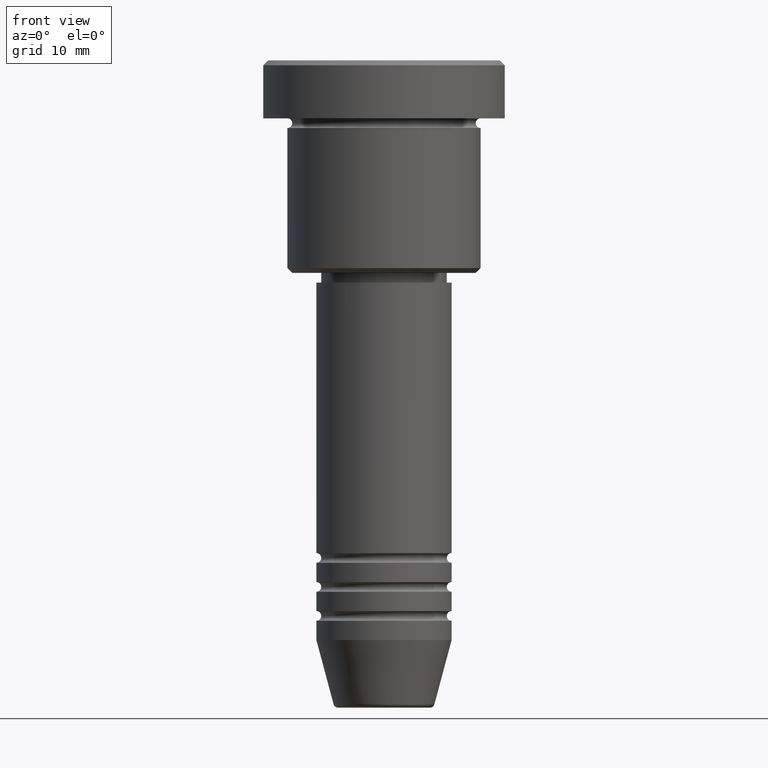
[diagram: clean part render]
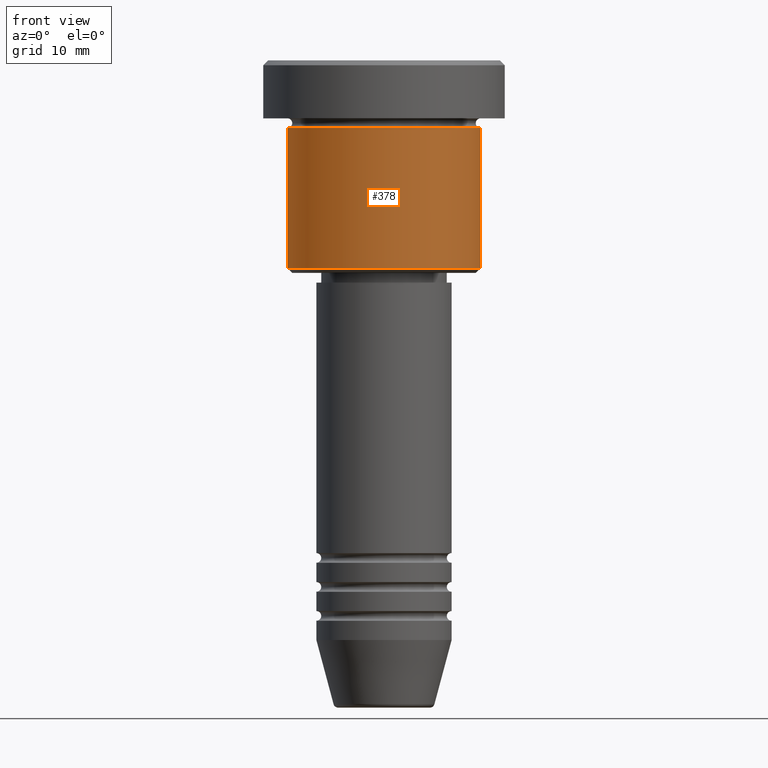
[diagram: same view with one face highlighted and labeled with its STEP entity id]
A machine part, front view. The second image highlights one B-rep face of the part: STEP entity #378.
In plain terms, the highlighted cylindrical surface (partial cylindrical patch) has radius 10 mm, axis along (-0, -0, 1).
Its self-contained STEP definition (entity closure, byte-faithful):
#51 = CIRCLE ( 'NONE', #797, 10.00000000000000000 ) ;
#53 = EDGE_CURVE ( 'NONE', #73, #863, #753, .T. ) ;
#73 = VERTEX_POINT ( 'NONE', #875 ) ;
#92 = DIRECTION ( 'NONE',  ( 1.000000000000000000, 0.000000000000000000, 0.000000000000000000 ) ) ;
#96 = DIRECTION ( 'NONE',  ( -0.000000000000000000, -0.000000000000000000, 1.000000000000000000 ) ) ;
#100 = LINE ( 'NONE', #652, #425 ) ;
#151 = ORIENTED_EDGE ( 'NONE', *, *, #53, .F. ) ;
#171 = CYLINDRICAL_SURFACE ( 'NONE', #406, 10.00000000000000000 ) ;
#222 = CARTESIAN_POINT ( 'NONE',  ( 0.000000000000000000, 0.000000000000000000, -6.999999999999996447 ) ) ;
#342 = EDGE_CURVE ( 'NONE', #424, #1037, #51, .T. ) ;
#364 = CARTESIAN_POINT ( 'NONE',  ( 0.000000000000000000, 0.000000000000000000, -21.49999999999999645 ) ) ;
#378 = ADVANCED_FACE ( 'NONE', ( #551 ), #171, .T. ) ;
#406 = AXIS2_PLACEMENT_3D ( 'NONE', #992, #96, #92 ) ;
#424 = VERTEX_POINT ( 'NONE', #435 ) ;
#425 = VECTOR ( 'NONE', #849, 1000.000000000000000 ) ;
#435 = CARTESIAN_POINT ( 'NONE',  ( -10.00000000000000000, 1.224646799147353256E-15, -21.49999999999999645 ) ) ;
#508 = DIRECTION ( 'NONE',  ( -0.000000000000000000, -0.000000000000000000, 1.000000000000000000 ) ) ;
#532 = LINE ( 'NONE', #900, #1182 ) ;
#551 = FACE_OUTER_BOUND ( 'NONE', #650, .T. ) ;
#596 = DIRECTION ( 'NONE',  ( 1.000000000000000000, 0.000000000000000000, 0.000000000000000000 ) ) ;
#650 = EDGE_LOOP ( 'NONE', ( #781, #825, #931, #151 ) ) ;
#652 = CARTESIAN_POINT ( 'NONE',  ( 10.00000000000000000, 0.000000000000000000, 0.000000000000000000 ) ) ;
#753 = CIRCLE ( 'NONE', #1062, 10.00000000000000000 ) ;
#759 = CARTESIAN_POINT ( 'NONE',  ( 10.00000000000000000, 0.000000000000000000, -21.49999999999999645 ) ) ;
#781 = ORIENTED_EDGE ( 'NONE', *, *, #861, .F. ) ;
#797 = AXIS2_PLACEMENT_3D ( 'NONE', #364, #997, #828 ) ;
#822 = DIRECTION ( 'NONE',  ( -0.000000000000000000, -0.000000000000000000, 1.000000000000000000 ) ) ;
#825 = ORIENTED_EDGE ( 'NONE', *, *, #342, .T. ) ;
#828 = DIRECTION ( 'NONE',  ( -1.000000000000000000, 0.000000000000000000, 0.000000000000000000 ) ) ;
#849 = DIRECTION ( 'NONE',  ( -0.000000000000000000, -0.000000000000000000, 1.000000000000000000 ) ) ;
#861 = EDGE_CURVE ( 'NONE', #424, #73, #532, .T. ) ;
#863 = VERTEX_POINT ( 'NONE', #1173 ) ;
#875 = CARTESIAN_POINT ( 'NONE',  ( -10.00000000000000000, 1.224646799147353256E-15, -6.999999999999996447 ) ) ;
#900 = CARTESIAN_POINT ( 'NONE',  ( -10.00000000000000000, 1.224646799147353256E-15, 0.000000000000000000 ) ) ;
#931 = ORIENTED_EDGE ( 'NONE', *, *, #996, .T. ) ;
#992 = CARTESIAN_POINT ( 'NONE',  ( 0.000000000000000000, 0.000000000000000000, 0.000000000000000000 ) ) ;
#996 = EDGE_CURVE ( 'NONE', #1037, #863, #100, .T. ) ;
#997 = DIRECTION ( 'NONE',  ( -0.000000000000000000, -0.000000000000000000, 1.000000000000000000 ) ) ;
#1037 = VERTEX_POINT ( 'NONE', #759 ) ;
#1062 = AXIS2_PLACEMENT_3D ( 'NONE', #222, #508, #596 ) ;
#1173 = CARTESIAN_POINT ( 'NONE',  ( 10.00000000000000000, 0.000000000000000000, -6.999999999999996447 ) ) ;
#1182 = VECTOR ( 'NONE', #822, 1000.000000000000000 ) ;